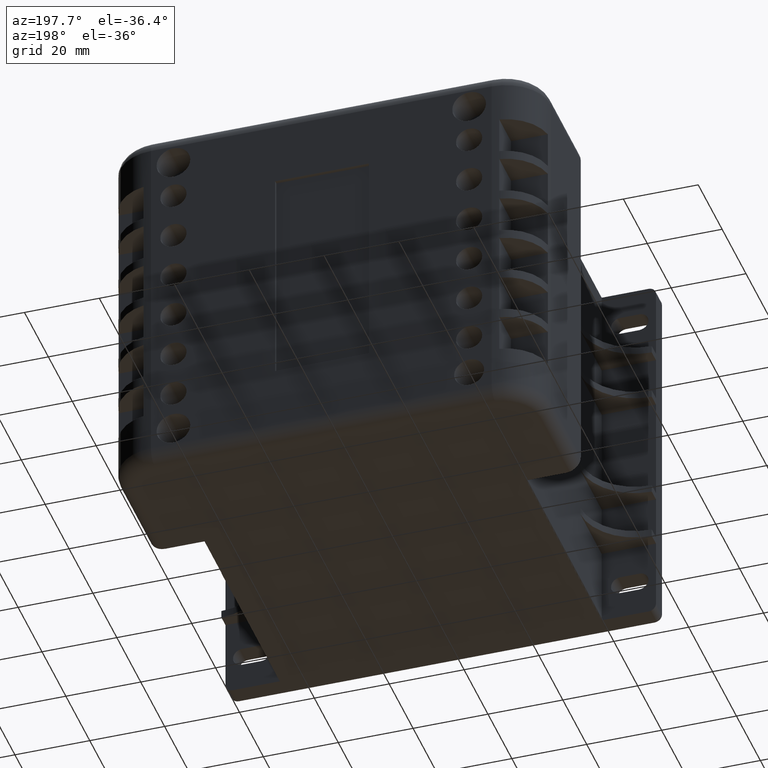
[diagram: clean part render]
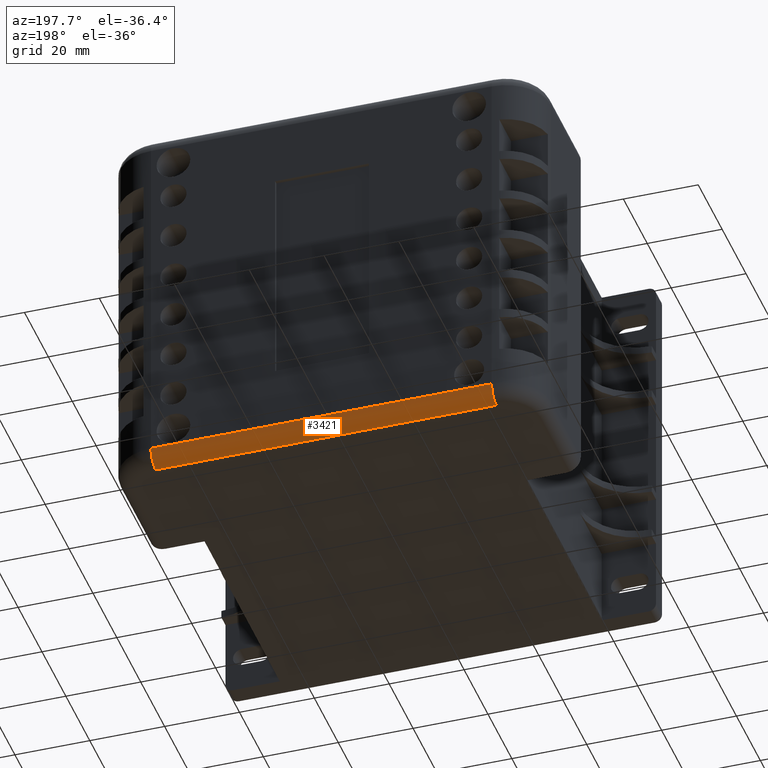
[diagram: same view with one face highlighted and labeled with its STEP entity id]
A machine part, auxiliary view. The second image highlights one B-rep face of the part: STEP entity #3421.
In plain terms, the highlighted cylindrical surface (edge-blend (fillet) strip) has radius 4 mm, axis along (-1, 0, 0).
Its self-contained STEP definition (entity closure, byte-faithful):
#81=CYLINDRICAL_SURFACE('',#3805,4.);
#167=CIRCLE('',#3803,4.);
#169=CIRCLE('',#3806,4.);
#382=FACE_OUTER_BOUND('',#593,.T.);
#593=EDGE_LOOP('',(#2622,#2623,#2624,#2625));
#877=LINE('',#5375,#1197);
#908=LINE('',#5527,#1228);
#1197=VECTOR('',#4394,10.);
#1228=VECTOR('',#4579,10.);
#1485=VERTEX_POINT('',#5372);
#1486=VERTEX_POINT('',#5374);
#1529=VERTEX_POINT('',#5521);
#1530=VERTEX_POINT('',#5525);
#1850=EDGE_CURVE('',#1486,#1485,#877,.T.);
#1915=EDGE_CURVE('',#1486,#1529,#167,.T.);
#1917=EDGE_CURVE('',#1485,#1530,#169,.T.);
#1918=EDGE_CURVE('',#1530,#1529,#908,.T.);
#2622=ORIENTED_EDGE('',*,*,#1917,.T.);
#2623=ORIENTED_EDGE('',*,*,#1918,.T.);
#2624=ORIENTED_EDGE('',*,*,#1915,.F.);
#2625=ORIENTED_EDGE('',*,*,#1850,.T.);
#3421=ADVANCED_FACE('',(#382),#81,.T.);
#3803=AXIS2_PLACEMENT_3D('',#5522,#4571,#4572);
#3805=AXIS2_PLACEMENT_3D('',#5524,#4575,#4576);
#3806=AXIS2_PLACEMENT_3D('',#5526,#4577,#4578);
#4394=DIRECTION('',(-1.,0.,1.71491501135003E-32));
#4571=DIRECTION('center_axis',(1.,0.,0.));
#4572=DIRECTION('ref_axis',(0.,0.,-1.));
#4575=DIRECTION('center_axis',(-1.,0.,1.71491501135003E-32));
#4576=DIRECTION('ref_axis',(0.,0.707106781186547,-0.707106781186548));
#4577=DIRECTION('center_axis',(1.,0.,0.));
#4578=DIRECTION('ref_axis',(0.,0.,-1.));
#4579=DIRECTION('',(1.,0.,-1.71491501135003E-32));
#5372=CARTESIAN_POINT('',(-103.,33.,1.27332439592739E-30));
#5374=CARTESIAN_POINT('',(-12.,33.,0.));
#5375=CARTESIAN_POINT('',(-28.75,33.,0.));
#5521=CARTESIAN_POINT('',(-12.,37.,4.));
#5522=CARTESIAN_POINT('Origin',(-12.,33.,4.));
#5524=CARTESIAN_POINT('Origin',(-28.75,33.,4.));
#5525=CARTESIAN_POINT('',(-103.,37.,4.));
#5526=CARTESIAN_POINT('Origin',(-103.,33.,4.));
#5527=CARTESIAN_POINT('',(-28.75,37.,4.));